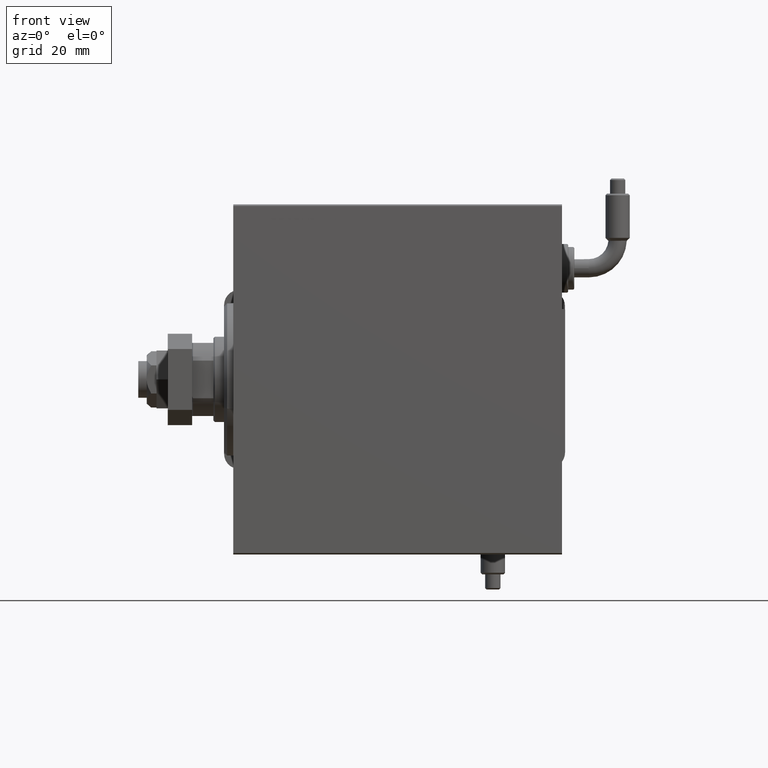
[diagram: clean part render]
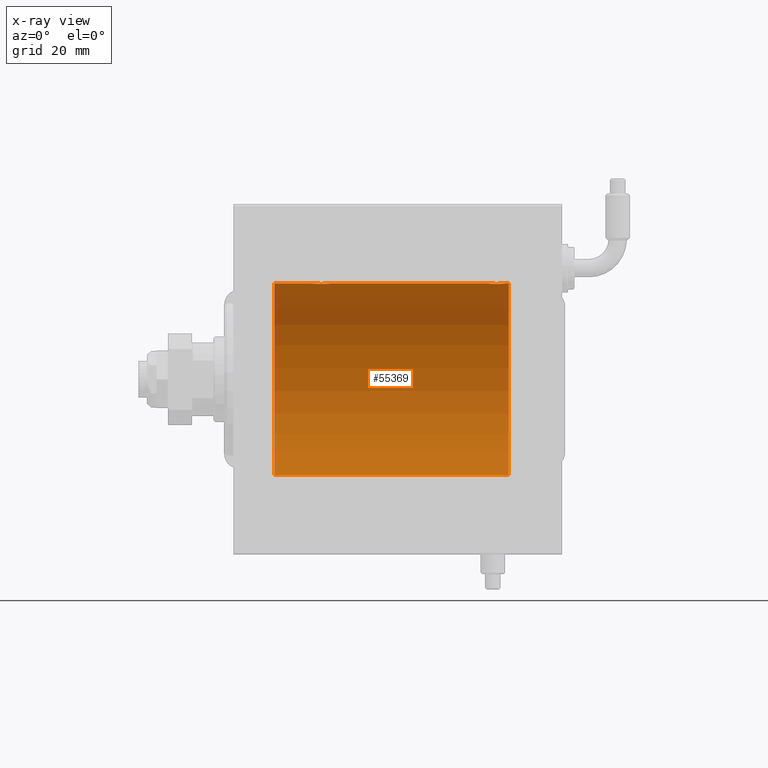
[diagram: x-ray — body ghosted, one internal face saturated and labeled with its STEP entity id]
A machine part, front view, then the same camera in x-ray: the body is ghosted and one INTERNAL B-rep face — a face not visible from any outside direction — is saturated and labeled: STEP entity #55369.
In plain terms, the highlighted cylindrical surface (partial cylindrical patch) has radius 31.5 mm, axis along (-1, -0, -0).
Its self-contained STEP definition (entity closure, byte-faithful):
#819 = CARTESIAN_POINT ( 'NONE',  ( 90.50000000000000000, 0.000000000000000000, 0.000000000000000000 ) ) ;
#926 = VERTEX_POINT ( 'NONE', #31947 ) ;
#1125 = CYLINDRICAL_SURFACE ( 'NONE', #24380, 31.50000000000000000 ) ;
#1716 = EDGE_CURVE ( 'NONE', #38219, #5591, #50013, .T. ) ;
#3075 = CARTESIAN_POINT ( 'NONE',  ( 84.11488042651789954, 1.830131931565288195, 31.44721086712686642 ) ) ;
#3381 = CARTESIAN_POINT ( 'NONE',  ( 85.53447219557938297, 2.847177118681589292, 31.37115363072576102 ) ) ;
#3680 = CARTESIAN_POINT ( 'NONE',  ( 89.50000000000001421, 0.1983379036618948266, 31.49999999999999289 ) ) ;
#3939 = CARTESIAN_POINT ( 'NONE',  ( 30.50363134844576507, 2.603460270751690508, 31.39242096616744249 ) ) ;
#4230 = CARTESIAN_POINT ( 'NONE',  ( 26.30368186223717331, 1.329867798385257815, 31.47244047903475206 ) ) ;
#4272 = CARTESIAN_POINT ( 'NONE',  ( 83.80368186223715554, 1.329867798385260702, 31.47244047903475916 ) ) ;
#4902 = CARTESIAN_POINT ( 'NONE',  ( 90.50000000000000000, 0.000000000000000000, 31.50000000000000000 ) ) ;
#5591 = VERTEX_POINT ( 'NONE', #39326 ) ;
#6344 = CARTESIAN_POINT ( 'NONE',  ( 83.49999999999998579, -2.116947682205846230E-23, 31.50000000000000000 ) ) ;
#7719 = CARTESIAN_POINT ( 'NONE',  ( 88.75924903376738939, 1.983444873066714020, 31.43779820687993976 ) ) ;
#8026 = CARTESIAN_POINT ( 'NONE',  ( 88.88591626639478704, 1.829162098167821604, 31.44727042639136627 ) ) ;
#8208 = CARTESIAN_POINT ( 'NONE',  ( 13.49999999999999822, 0.000000000000000000, 0.000000000000000000 ) ) ;
#8896 = CARTESIAN_POINT ( 'NONE',  ( 26.61488042651788177, 1.830131931565276426, 31.44721086712685931 ) ) ;
#9200 = CARTESIAN_POINT ( 'NONE',  ( 30.32915601165003139, 2.696575640577646205, 31.38445666459465500 ) ) ;
#9263 = LINE ( 'NONE', #4902, #28259 ) ;
#9872 = DIRECTION ( 'NONE',  ( -1.000000000000000000, -0.000000000000000000, -0.000000000000000000 ) ) ;
#10177 = VERTEX_POINT ( 'NONE', #16383 ) ;
#10681 = DIRECTION ( 'NONE',  ( 0.000000000000000000, 0.000000000000000000, 1.000000000000000000 ) ) ;
#10941 = ORIENTED_EDGE ( 'NONE', *, *, #48744, .T. ) ;
#11285 = EDGE_CURVE ( 'NONE', #5591, #17882, #26803, .T. ) ;
#11704 = EDGE_CURVE ( 'NONE', #926, #32651, #19661, .T. ) ;
#12394 = CARTESIAN_POINT ( 'NONE',  ( 84.23894082546060247, 1.981627308739915216, 31.43792063499535061 ) ) ;
#12546 = EDGE_CURVE ( 'NONE', #26510, #32651, #18497, .T. ) ;
#12971 = CARTESIAN_POINT ( 'NONE',  ( 31.99999999999998579, 0.1983379036618942437, 31.50000000000000000 ) ) ;
#13006 = CARTESIAN_POINT ( 'NONE',  ( 83.59639262129910264, 0.7794402936641361412, 31.49094275383853514 ) ) ;
#13271 = CARTESIAN_POINT ( 'NONE',  ( 26.00000000000000355, -2.117263226567934635E-23, 31.50000000000000000 ) ) ;
#13740 = AXIS2_PLACEMENT_3D ( 'NONE', #8208, #61263, #37333 ) ;
#13880 = CARTESIAN_POINT ( 'NONE',  ( 29.96816165840708379, 2.846197268611679654, 31.37124163027859325 ) ) ;
#14176 = CARTESIAN_POINT ( 'NONE',  ( 30.98257411773193937, 2.260013192167872109, 31.41912713670170376 ) ) ;
#14801 = FACE_OUTER_BOUND ( 'NONE', #46674, .T. ) ;
#15146 = ORIENTED_EDGE ( 'NONE', *, *, #33517, .T. ) ;
#16383 = CARTESIAN_POINT ( 'NONE',  ( 90.50000000000000000, 0.000000000000000000, 31.50000000000000000 ) ) ;
#17043 = CARTESIAN_POINT ( 'NONE',  ( 26.00000000000000355, -2.117263226567934635E-23, 31.50000000000000000 ) ) ;
#17062 = ORIENTED_EDGE ( 'NONE', *, *, #41626, .F. ) ;
#17351 = CARTESIAN_POINT ( 'NONE',  ( 83.89764130386932095, 1.505293155307508624, 31.46443304312125733 ) ) ;
#17645 = CARTESIAN_POINT ( 'NONE',  ( 84.99557653296076865, 2.602863964129819241, 31.39246667950590464 ) ) ;
#17882 = VERTEX_POINT ( 'NONE', #17043 ) ;
#17904 = CARTESIAN_POINT ( 'NONE',  ( 31.98052481897509836, 0.3933386891556653886, 31.49812829325316343 ) ) ;
#18210 = CARTESIAN_POINT ( 'NONE',  ( 27.49557653296076154, 2.602863964129807250, 31.39246667950590464 ) ) ;
#18249 = CARTESIAN_POINT ( 'NONE',  ( 89.34649213527309541, 0.9675486622706157558, 31.48566161620712478 ) ) ;
#18497 = LINE ( 'NONE', #51389, #22714 ) ;
#18816 = CARTESIAN_POINT ( 'NONE',  ( 26.01962964533704081, 0.3947854228308197988, 31.49811339059600002 ) ) ;
#19661 = CIRCLE ( 'NONE', #13740, 31.50000000000000000 ) ;
#19971 = CARTESIAN_POINT ( 'NONE',  ( 90.50000000000000000, 0.000000000000000000, 0.000000000000000000 ) ) ;
#20381 = EDGE_CURVE ( 'NONE', #17882, #926, #44294, .T. ) ;
#20711 = CARTESIAN_POINT ( 'NONE',  ( 90.50000000000000000, 0.000000000000000000, 31.50000000000000000 ) ) ;
#22296 = CARTESIAN_POINT ( 'NONE',  ( 86.69688046033346041, 2.999928894260102563, 31.35682424344752306 ) ) ;
#22589 = CARTESIAN_POINT ( 'NONE',  ( 88.00363134844577928, 2.603460270751700278, 31.39242096616744959 ) ) ;
#22714 = VECTOR ( 'NONE', #46720, 1000.000000000000000 ) ;
#22853 = CARTESIAN_POINT ( 'NONE',  ( 27.01911300874993316, 2.261707786034451662, 31.41901301017587755 ) ) ;
#22893 = CARTESIAN_POINT ( 'NONE',  ( 87.46816165840706958, 2.846197268611692088, 31.37124163027859325 ) ) ;
#23162 = CARTESIAN_POINT ( 'NONE',  ( 26.09639262129909554, 0.7794402936641312563, 31.49094275383852093 ) ) ;
#23201 = CARTESIAN_POINT ( 'NONE',  ( 88.33158836027361360, 2.384155341399023520, 31.40983767558390483 ) ) ;
#24380 = AXIS2_PLACEMENT_3D ( 'NONE', #819, #32769, #33685 ) ;
#26510 = VERTEX_POINT ( 'NONE', #40522 ) ;
#26639 = CARTESIAN_POINT ( 'NONE',  ( 86.30529250725176382, 3.000070712257539629, 31.35681067529873189 ) ) ;
#26803 = B_SPLINE_CURVE_WITH_KNOTS ( 'NONE', 3,
 ( #32448, #12971, #17904, #60127, #51709, #28106, #36807, #61042, #41757, #14176, #51409, #3939, #9200, #13880, #60730, #33062, #47054, #27203, #32757, #42378, #61340, #51102, #18210, #55769, #22853, #56083, #8896, #46738, #4230, #31841, #23162, #18816, #52021, #13271 ),
 .UNSPECIFIED., .F., .F.,
 ( 4, 2, 2, 2, 2, 2, 2, 2, 2, 2, 2, 2, 2, 2, 2, 2, 4 ),
 ( 1.524755128789623575E-18, 0.0005865426616959163852, 0.001173085323391831252, 0.001759627985087746120, 0.002346170646783661204, 0.002932713308479576071, 0.003519255970175490938, 0.004105798631871405806, 0.004692341293567320673, 0.005278883955263235540, 0.005865426616959150408, 0.006451969278655065275, 0.007038511940350980142, 0.007625054602046895010, 0.008211597263742809877, 0.008798139925438723877, 0.009384682587134639611 ),
 .UNSPECIFIED. ) ;
#27203 = CARTESIAN_POINT ( 'NONE',  ( 28.80529250725175316, 3.000070712257528971, 31.35681067529873189 ) ) ;
#27490 = B_SPLINE_CURVE_WITH_KNOTS ( 'NONE', 3,
 ( #46777, #3680, #50541, #41203, #18249, #27836, #27539, #8026, #7719, #37153, #23201, #22589, #56123, #22893, #45874, #60164, #22296, #26639, #31579, #45579, #3381, #50240, #17645, #41502, #50837, #12394, #3075, #17351, #4272, #31876, #13006, #61080, #41797, #36244 ),
 .UNSPECIFIED., .F., .F.,
 ( 4, 2, 2, 2, 2, 2, 2, 2, 2, 2, 2, 2, 2, 2, 2, 2, 4 ),
 ( 2.347214371482653179E-19, 0.0005865426616959166020, 0.001173085323391832770, 0.001759627985087748722, 0.002346170646783665107, 0.002932713308479581275, 0.003519255970175497444, 0.004105798631871413612, 0.004692341293567330214, 0.005278883955263246816, 0.005865426616959162551, 0.006451969278655079153, 0.007038511940350995755, 0.007625054602046912357, 0.008211597263742828959, 0.008798139925438744693, 0.009384682587134660428 ),
 .UNSPECIFIED. ) ;
#27539 = CARTESIAN_POINT ( 'NONE',  ( 89.10366586440801484, 1.503114925126262547, 31.46454030768325438 ) ) ;
#27836 = CARTESIAN_POINT ( 'NONE',  ( 89.19583971800496158, 1.330832861354135144, 31.47239936387595449 ) ) ;
#28106 = CARTESIAN_POINT ( 'NONE',  ( 31.69583971800497935, 1.330832861354130925, 31.47239936387596160 ) ) ;
#28259 = VECTOR ( 'NONE', #9872, 1000.000000000000000 ) ;
#31579 = CARTESIAN_POINT ( 'NONE',  ( 86.10640401948890599, 2.980533683278887569, 31.35869737338551388 ) ) ;
#31841 = CARTESIAN_POINT ( 'NONE',  ( 26.15313998394373840, 0.9664718879465885593, 31.48569500832682522 ) ) ;
#31876 = CARTESIAN_POINT ( 'NONE',  ( 83.65313998394373129, 0.9664718879465890033, 31.48569500832682522 ) ) ;
#31947 = CARTESIAN_POINT ( 'NONE',  ( 13.49999999999999822, 0.000000000000000000, 31.50000000000000000 ) ) ;
#32189 = CARTESIAN_POINT ( 'NONE',  ( 89.50000000000000000, -2.415502498297804861E-16, 31.50000000000000000 ) ) ;
#32448 = CARTESIAN_POINT ( 'NONE',  ( 32.00000000000000000, -3.906065418435112189E-16, 31.50000000000000000 ) ) ;
#32651 = VERTEX_POINT ( 'NONE', #34644 ) ;
#32757 = CARTESIAN_POINT ( 'NONE',  ( 28.60640401948893086, 2.980533683278877355, 31.35869737338551388 ) ) ;
#32769 = DIRECTION ( 'NONE',  ( -1.000000000000000000, -0.000000000000000000, -0.000000000000000000 ) ) ;
#33062 = CARTESIAN_POINT ( 'NONE',  ( 29.39162658774828785, 2.980875975682584222, 31.35866508162785848 ) ) ;
#33517 = EDGE_CURVE ( 'NONE', #10177, #48780, #9263, .T. ) ;
#33685 = DIRECTION ( 'NONE',  ( 0.000000000000000000, 0.000000000000000000, 1.000000000000000000 ) ) ;
#34644 = CARTESIAN_POINT ( 'NONE',  ( 13.49999999999999822, 3.857637417314162689E-15, -31.50000000000000000 ) ) ;
#35710 = DIRECTION ( 'NONE',  ( -1.000000000000000000, -0.000000000000000000, -0.000000000000000000 ) ) ;
#36244 = CARTESIAN_POINT ( 'NONE',  ( 83.49999999999998579, -2.116947682205846230E-23, 31.50000000000000000 ) ) ;
#36807 = CARTESIAN_POINT ( 'NONE',  ( 31.60366586440800063, 1.503114925126257218, 31.46454030768326149 ) ) ;
#36937 = VECTOR ( 'NONE', #35710, 1000.000000000000000 ) ;
#37153 = CARTESIAN_POINT ( 'NONE',  ( 88.48257411773192871, 2.260013192167880547, 31.41912713670171087 ) ) ;
#37333 = DIRECTION ( 'NONE',  ( 0.000000000000000000, 0.000000000000000000, 1.000000000000000000 ) ) ;
#38219 = VERTEX_POINT ( 'NONE', #6344 ) ;
#38923 = ORIENTED_EDGE ( 'NONE', *, *, #11704, .T. ) ;
#39326 = CARTESIAN_POINT ( 'NONE',  ( 32.00000000000000000, -3.906065418435112189E-16, 31.50000000000000000 ) ) ;
#40522 = CARTESIAN_POINT ( 'NONE',  ( 90.50000000000000000, 3.857637417314162689E-15, -31.50000000000000000 ) ) ;
#40760 = VECTOR ( 'NONE', #50194, 1000.000000000000000 ) ;
#41115 = ORIENTED_EDGE ( 'NONE', *, *, #1716, .T. ) ;
#41203 = CARTESIAN_POINT ( 'NONE',  ( 89.40423806629732439, 0.7769457993854311795, 31.49100119919085472 ) ) ;
#41502 = CARTESIAN_POINT ( 'NONE',  ( 84.67061414532871311, 2.385694485610543314, 31.40971707706042437 ) ) ;
#41626 = EDGE_CURVE ( 'NONE', #10177, #26510, #52756, .T. ) ;
#41757 = CARTESIAN_POINT ( 'NONE',  ( 31.25924903376736097, 1.983444873066708247, 31.43779820687992554 ) ) ;
#41797 = CARTESIAN_POINT ( 'NONE',  ( 83.49999999999997158, 0.1958503357044810711, 31.50000000000000000 ) ) ;
#42378 = CARTESIAN_POINT ( 'NONE',  ( 28.22154160523339783, 2.903876953428266461, 31.36588880666517909 ) ) ;
#44294 = LINE ( 'NONE', #20711, #40760 ) ;
#44642 = ORIENTED_EDGE ( 'NONE', *, *, #12546, .F. ) ;
#45579 = CARTESIAN_POINT ( 'NONE',  ( 85.72154160523335520, 2.903876953428275343, 31.36588880666517909 ) ) ;
#45654 = CARTESIAN_POINT ( 'NONE',  ( 90.50000000000000000, 0.000000000000000000, 31.50000000000000000 ) ) ;
#45874 = CARTESIAN_POINT ( 'NONE',  ( 87.27897008593143369, 2.903824817694236504, 31.36589387714387200 ) ) ;
#46674 = EDGE_LOOP ( 'NONE', ( #44642, #17062, #15146, #10941, #41115, #55468, #50795, #38923 ) ) ;
#46720 = DIRECTION ( 'NONE',  ( -1.000000000000000000, -0.000000000000000000, -0.000000000000000000 ) ) ;
#46738 = CARTESIAN_POINT ( 'NONE',  ( 26.39764130386935648, 1.505293155307497965, 31.46443304312125022 ) ) ;
#46777 = CARTESIAN_POINT ( 'NONE',  ( 89.50000000000000000, -2.415502498297804861E-16, 31.50000000000000000 ) ) ;
#47054 = CARTESIAN_POINT ( 'NONE',  ( 29.19688046033348883, 2.999928894260092349, 31.35682424344752306 ) ) ;
#48744 = EDGE_CURVE ( 'NONE', #48780, #38219, #27490, .T. ) ;
#48780 = VERTEX_POINT ( 'NONE', #32189 ) ;
#50013 = LINE ( 'NONE', #45654, #36937 ) ;
#50194 = DIRECTION ( 'NONE',  ( -1.000000000000000000, -0.000000000000000000, -0.000000000000000000 ) ) ;
#50240 = CARTESIAN_POINT ( 'NONE',  ( 85.17111044284132504, 2.696796994793650981, 31.38443855856935016 ) ) ;
#50541 = CARTESIAN_POINT ( 'NONE',  ( 89.48052481897511257, 0.3933386891556650000, 31.49812829325317054 ) ) ;
#50763 = AXIS2_PLACEMENT_3D ( 'NONE', #19971, #57851, #10681 ) ;
#50795 = ORIENTED_EDGE ( 'NONE', *, *, #20381, .T. ) ;
#50837 = CARTESIAN_POINT ( 'NONE',  ( 84.51911300874994026, 2.261707786034461432, 31.41901301017587755 ) ) ;
#51102 = CARTESIAN_POINT ( 'NONE',  ( 27.67111044284136057, 2.696796994793635438, 31.38443855856935016 ) ) ;
#51389 = CARTESIAN_POINT ( 'NONE',  ( 90.50000000000000000, 3.857637417314162689E-15, -31.50000000000000000 ) ) ;
#51409 = CARTESIAN_POINT ( 'NONE',  ( 30.83158836027363492, 2.384155341399014638, 31.40983767558391193 ) ) ;
#51709 = CARTESIAN_POINT ( 'NONE',  ( 31.84649213527308120, 0.9675486622706125361, 31.48566161620712478 ) ) ;
#52021 = CARTESIAN_POINT ( 'NONE',  ( 26.00000000000001066, 0.1958503357044829030, 31.50000000000000711 ) ) ;
#52756 = CIRCLE ( 'NONE', #50763, 31.50000000000000000 ) ;
#55369 = ADVANCED_FACE ( 'NONE', ( #14801 ), #1125, .F. ) ;
#55468 = ORIENTED_EDGE ( 'NONE', *, *, #11285, .T. ) ;
#55769 = CARTESIAN_POINT ( 'NONE',  ( 27.17061414532871311, 2.385694485610531324, 31.40971707706042437 ) ) ;
#56083 = CARTESIAN_POINT ( 'NONE',  ( 26.73894082546058826, 1.981627308739907001, 31.43792063499534351 ) ) ;
#56123 = CARTESIAN_POINT ( 'NONE',  ( 87.82915601164999941, 2.696575640577657307, 31.38445666459464789 ) ) ;
#57851 = DIRECTION ( 'NONE',  ( -1.000000000000000000, 0.000000000000000000, 0.000000000000000000 ) ) ;
#60127 = CARTESIAN_POINT ( 'NONE',  ( 31.90423806629734926, 0.7769457993854306244, 31.49100119919085472 ) ) ;
#60164 = CARTESIAN_POINT ( 'NONE',  ( 86.89162658774827719, 2.980875975682594881, 31.35866508162786559 ) ) ;
#60730 = CARTESIAN_POINT ( 'NONE',  ( 29.77897008593146211, 2.903824817694226290, 31.36589387714387200 ) ) ;
#61042 = CARTESIAN_POINT ( 'NONE',  ( 31.38591626639475862, 1.829162098167815387, 31.44727042639135917 ) ) ;
#61080 = CARTESIAN_POINT ( 'NONE',  ( 83.51962964533699108, 0.3947854228308227409, 31.49811339059598581 ) ) ;
#61263 = DIRECTION ( 'NONE',  ( -1.000000000000000000, 0.000000000000000000, 0.000000000000000000 ) ) ;
#61340 = CARTESIAN_POINT ( 'NONE',  ( 28.03447219557935099, 2.847177118681576413, 31.37115363072576102 ) ) ;